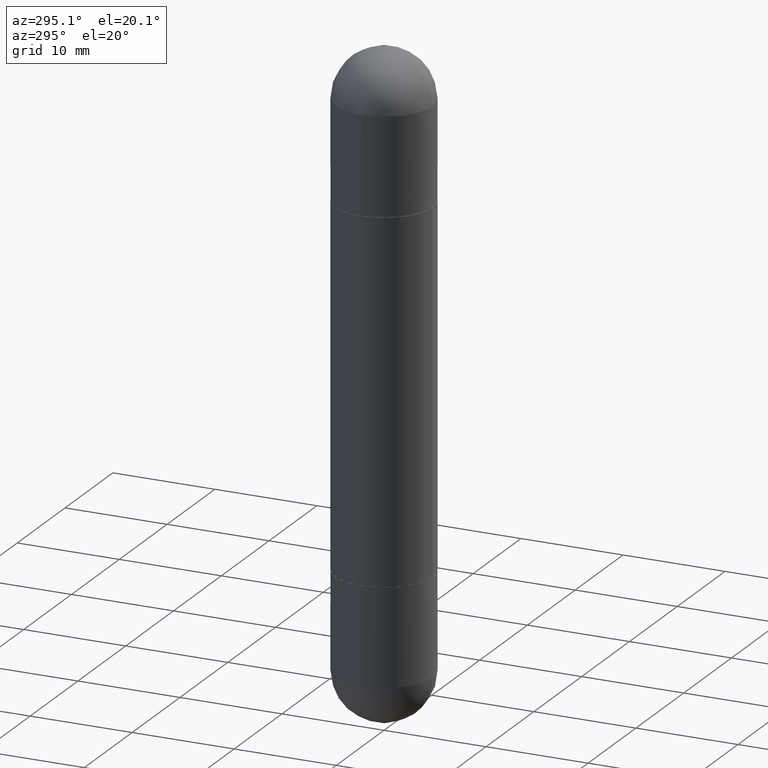
[diagram: clean part render]
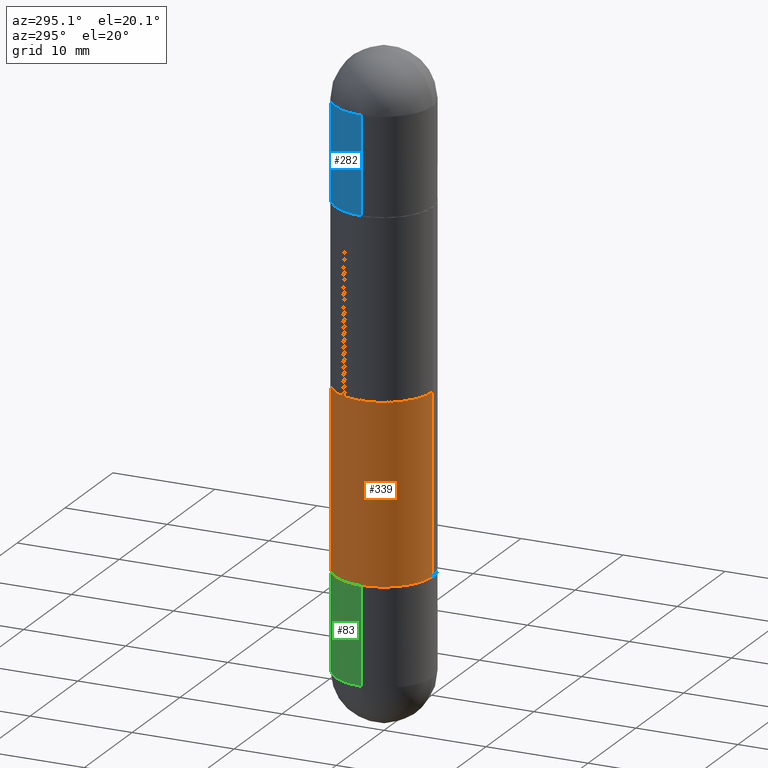
[diagram: same view with three faces highlighted in distinct colors, each labeled with its STEP entity id]
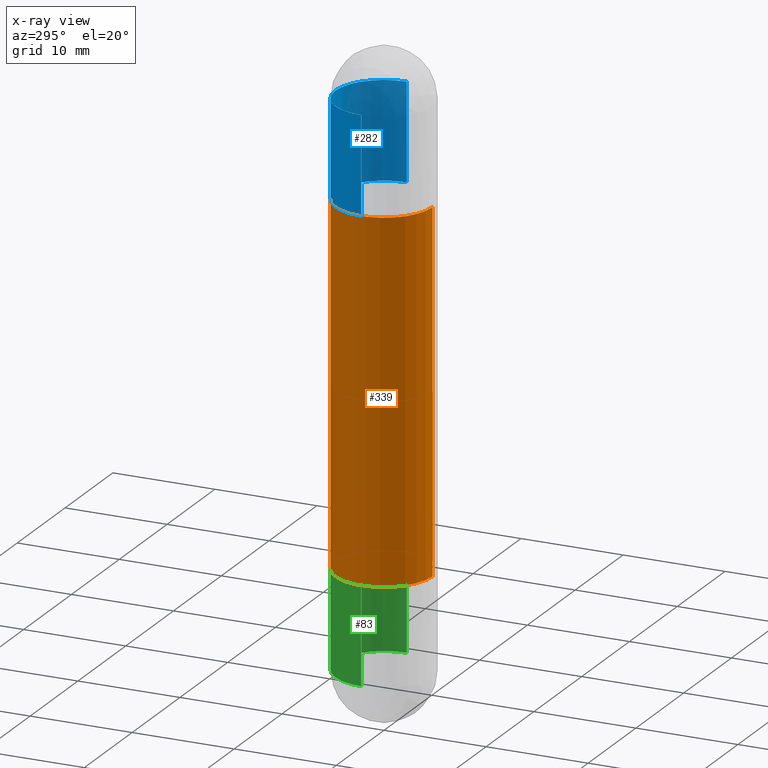
[diagram: x-ray of the same camera — body ghosted, the three highlighted faces saturated]
A machine part, auxiliary view with three faces highlighted in distinct colors.
The next image is the same camera in x-ray (body ghosted, the three faces saturated) — at least one of them is partly hidden behind the body in this view.
Their STEP definitions:

[orange] entity #339 — the highlighted cylindrical surface (partial cylindrical patch) has radius 4.7625 mm, axis along (-0, 0, -1).
#68 = DIRECTION ( 'NONE',  ( -2.446135509155562374E-29, 3.490526582243119048E-15, -1.000000000000000000 ) ) ;
#99 = CARTESIAN_POINT ( 'NONE',  ( -1.309305502066128860E-15, -0.1875000000000069389, -0.5630000000000014992 ) ) ;
#105 = DIRECTION ( 'NONE',  ( -2.446135509155562374E-29, 3.490526582243119048E-15, 1.000000000000000000 ) ) ;
#149 = AXIS2_PLACEMENT_3D ( 'NONE', #180, #105, #678 ) ;
#163 = ORIENTED_EDGE ( 'NONE', *, *, #790, .T. ) ;
#164 = CIRCLE ( 'NONE', #149, 0.1875000000000002220 ) ;
#180 = CARTESIAN_POINT ( 'NONE',  ( 4.738164481234324369E-29, -6.761149989804920839E-15, -1.936999999999999833 ) ) ;
#188 = VERTEX_POINT ( 'NONE', #488 ) ;
#190 = DIRECTION ( 'NONE',  ( -2.446135509155562374E-29, 3.490526582243119048E-15, -1.000000000000000000 ) ) ;
#209 = CARTESIAN_POINT ( 'NONE',  ( 4.738164481234324369E-29, -6.761149989804920839E-15, -0.5630000000000008331 ) ) ;
#213 = EDGE_LOOP ( 'NONE', ( #650, #480, #163, #547 ) ) ;
#251 = CARTESIAN_POINT ( 'NONE',  ( 0.000000000000000000, 0.000000000000000000, -2.500000000000000444 ) ) ;
#256 = CYLINDRICAL_SURFACE ( 'NONE', #617, 0.1875000000000001110 ) ;
#312 = CARTESIAN_POINT ( 'NONE',  ( 1.286343374582210880E-15, 0.1874999999999935052, -0.5630000000000001670 ) ) ;
#326 = FACE_OUTER_BOUND ( 'NONE', #213, .T. ) ;
#339 = ADVANCED_FACE ( 'NONE', ( #326 ), #256, .T. ) ;
#356 = DIRECTION ( 'NONE',  ( -6.982962677686265922E-15, -1.000000000000000000, -3.642463991552347014E-15 ) ) ;
#382 = VECTOR ( 'NONE', #190, 39.37007874015748143 ) ;
#428 = CARTESIAN_POINT ( 'NONE',  ( 1.286343374582193722E-15, 0.1874999999999934497, -1.937000000000000499 ) ) ;
#446 = AXIS2_PLACEMENT_3D ( 'NONE', #209, #734, #356 ) ;
#478 = VERTEX_POINT ( 'NONE', #428 ) ;
#480 = ORIENTED_EDGE ( 'NONE', *, *, #542, .T. ) ;
#488 = CARTESIAN_POINT ( 'NONE',  ( -1.309305502066129254E-15, -0.1875000000000069944, -1.936999999999999389 ) ) ;
#528 = LINE ( 'NONE', #772, #709 ) ;
#542 = EDGE_CURVE ( 'NONE', #704, #478, #555, .T. ) ;
#547 = ORIENTED_EDGE ( 'NONE', *, *, #680, .F. ) ;
#555 = LINE ( 'NONE', #741, #382 ) ;
#568 = DIRECTION ( 'NONE',  ( -2.446135509155562374E-29, 3.490526582243119048E-15, -1.000000000000000000 ) ) ;
#577 = VERTEX_POINT ( 'NONE', #99 ) ;
#617 = AXIS2_PLACEMENT_3D ( 'NONE', #251, #568, #689 ) ;
#650 = ORIENTED_EDGE ( 'NONE', *, *, #695, .F. ) ;
#678 = DIRECTION ( 'NONE',  ( -6.982962677686265922E-15, -1.000000000000000000, 2.913971193241877216E-15 ) ) ;
#680 = EDGE_CURVE ( 'NONE', #577, #188, #528, .T. ) ;
#689 = DIRECTION ( 'NONE',  ( -6.982962677686266711E-15, -1.000000000000000000, -2.913971193241879189E-15 ) ) ;
#695 = EDGE_CURVE ( 'NONE', #704, #577, #719, .T. ) ;
#704 = VERTEX_POINT ( 'NONE', #312 ) ;
#709 = VECTOR ( 'NONE', #68, 39.37007874015748143 ) ;
#719 = CIRCLE ( 'NONE', #446, 0.1875000000000002220 ) ;
#734 = DIRECTION ( 'NONE',  ( 2.446135509155562374E-29, -3.490526582243119048E-15, 1.000000000000000000 ) ) ;
#741 = CARTESIAN_POINT ( 'NONE',  ( 1.286343374582162760E-15, 0.1875000000000001110, -2.500000000000000000 ) ) ;
#772 = CARTESIAN_POINT ( 'NONE',  ( -1.309305502066175797E-15, -0.1875000000000001110, -2.500000000000001332 ) ) ;
#790 = EDGE_CURVE ( 'NONE', #478, #188, #164, .T. ) ;

[blue] entity #282 — the highlighted cylindrical surface (partial cylindrical patch) has radius 4.7625 mm, axis along (-0, 0, -1).
#12 = AXIS2_PLACEMENT_3D ( 'NONE', #300, #484, #733 ) ;
#14 = AXIS2_PLACEMENT_3D ( 'NONE', #88, #352, #634 ) ;
#23 = VERTEX_POINT ( 'NONE', #263 ) ;
#35 = CARTESIAN_POINT ( 'NONE',  ( 0.1875000000000000278, -8.075796336744191053E-15, -0.5620000000000007212 ) ) ;
#38 = CYLINDRICAL_SURFACE ( 'NONE', #12, 0.1875000000000000555 ) ;
#47 = ORIENTED_EDGE ( 'NONE', *, *, #610, .T. ) ;
#52 = DIRECTION ( 'NONE',  ( -2.445468806185136877E-29, 3.491481338843145188E-15, -1.000000000000000000 ) ) ;
#88 = CARTESIAN_POINT ( 'NONE',  ( 5.655146614303128380E-29, -8.074050596074775072E-15, -0.1875000000000006661 ) ) ;
#95 = ORIENTED_EDGE ( 'NONE', *, *, #581, .F. ) ;
#100 = CARTESIAN_POINT ( 'NONE',  ( -0.1875000000000000278, -6.133927340794232602E-15, -0.5620000000000007212 ) ) ;
#114 = LINE ( 'NONE', #736, #162 ) ;
#117 = AXIS2_PLACEMENT_3D ( 'NONE', #133, #468, #638 ) ;
#133 = CARTESIAN_POINT ( 'NONE',  ( 4.739318546386794397E-29, -6.766490834678016045E-15, -0.5620000000000007212 ) ) ;
#140 = EDGE_LOOP ( 'NONE', ( #722, #95, #710, #592, #47 ) ) ;
#162 = VECTOR ( 'NONE', #52, 39.37007874015748143 ) ;
#173 = VERTEX_POINT ( 'NONE', #100 ) ;
#194 = EDGE_CURVE ( 'NONE', #298, #173, #114, .T. ) ;
#199 = CARTESIAN_POINT ( 'NONE',  ( 0.1875000000000000555, -1.309305502066175205E-15, -2.500000000000000444 ) ) ;
#235 = VERTEX_POINT ( 'NONE', #523 ) ;
#242 = DIRECTION ( 'NONE',  ( -2.445468806185136877E-29, 3.491481338843145188E-15, -1.000000000000000000 ) ) ;
#245 = LINE ( 'NONE', #199, #481 ) ;
#263 = CARTESIAN_POINT ( 'NONE',  ( 1.309305502066231017E-15, 0.1874999999999918954, -0.1875000000000000278 ) ) ;
#282 = ADVANCED_FACE ( 'NONE', ( #491 ), #38, .T. ) ;
#298 = VERTEX_POINT ( 'NONE', #612 ) ;
#300 = CARTESIAN_POINT ( 'NONE',  ( 0.000000000000000000, 0.000000000000000000, -2.500000000000000444 ) ) ;
#352 = DIRECTION ( 'NONE',  ( 2.445468806185136597E-29, -3.491481338843145583E-15, 1.000000000000000000 ) ) ;
#368 = DIRECTION ( 'NONE',  ( 1.000000000000000000, -6.982962677686270655E-15, 0.000000000000000000 ) ) ;
#434 = CARTESIAN_POINT ( 'NONE',  ( 5.655146614303128380E-29, -8.074050596074775072E-15, -0.1875000000000006661 ) ) ;
#468 = DIRECTION ( 'NONE',  ( 2.445468806185136597E-29, -3.491481338843145583E-15, 1.000000000000000000 ) ) ;
#481 = VECTOR ( 'NONE', #242, 39.37007874015748143 ) ;
#482 = CIRCLE ( 'NONE', #117, 0.1875000000000000278 ) ;
#484 = DIRECTION ( 'NONE',  ( -2.445468806185136597E-29, 3.491481338843145583E-15, -1.000000000000000000 ) ) ;
#487 = EDGE_CURVE ( 'NONE', #235, #711, #245, .T. ) ;
#491 = FACE_OUTER_BOUND ( 'NONE', #140, .T. ) ;
#518 = EDGE_CURVE ( 'NONE', #235, #23, #578, .T. ) ;
#521 = AXIS2_PLACEMENT_3D ( 'NONE', #434, #677, #368 ) ;
#523 = CARTESIAN_POINT ( 'NONE',  ( 0.1875000000000000555, -8.729576217442571356E-15, -0.1875000000000006661 ) ) ;
#578 = CIRCLE ( 'NONE', #521, 0.1875000000000000555 ) ;
#581 = EDGE_CURVE ( 'NONE', #23, #298, #697, .T. ) ;
#592 = ORIENTED_EDGE ( 'NONE', *, *, #487, .T. ) ;
#610 = EDGE_CURVE ( 'NONE', #711, #173, #482, .T. ) ;
#612 = CARTESIAN_POINT ( 'NONE',  ( -0.1875000000000000555, -6.133927340794233391E-15, -0.1875000000000006661 ) ) ;
#634 = DIRECTION ( 'NONE',  ( 1.000000000000000000, -6.982962677686270655E-15, 0.000000000000000000 ) ) ;
#638 = DIRECTION ( 'NONE',  ( 1.000000000000000000, -6.982962677686266711E-15, 0.000000000000000000 ) ) ;
#677 = DIRECTION ( 'NONE',  ( 2.445468806185136597E-29, -3.491481338843145583E-15, 1.000000000000000000 ) ) ;
#697 = CIRCLE ( 'NONE', #14, 0.1875000000000000555 ) ;
#710 = ORIENTED_EDGE ( 'NONE', *, *, #518, .F. ) ;
#711 = VERTEX_POINT ( 'NONE', #35 ) ;
#722 = ORIENTED_EDGE ( 'NONE', *, *, #194, .F. ) ;
#733 = DIRECTION ( 'NONE',  ( 1.000000000000000000, -6.982962677686265922E-15, 0.000000000000000000 ) ) ;
#736 = CARTESIAN_POINT ( 'NONE',  ( -0.1875000000000000555, 1.286343374582162562E-15, -2.500000000000000444 ) ) ;

[green] entity #83 — the highlighted cylindrical surface (partial cylindrical patch) has radius 4.7625 mm, axis along (-0, 0, 1).
#8 = ORIENTED_EDGE ( 'NONE', *, *, #31, .T. ) ;
#9 = CARTESIAN_POINT ( 'NONE',  ( -0.1875000000000000555, -6.088003085826207710E-15, -2.312500000000000000 ) ) ;
#24 = ORIENTED_EDGE ( 'NONE', *, *, #325, .F. ) ;
#31 = EDGE_CURVE ( 'NONE', #270, #344, #214, .T. ) ;
#57 = CARTESIAN_POINT ( 'NONE',  ( 0.1875000000000000555, -1.309305502066175205E-15, 9.142831454617382414E-30 ) ) ;
#70 = CARTESIAN_POINT ( 'NONE',  ( -0.1875000000000000555, 1.332267629550188243E-15, -9.223003294227950793E-30 ) ) ;
#78 = CYLINDRICAL_SURFACE ( 'NONE', #668, 0.1875000000000000555 ) ;
#80 = DIRECTION ( 'NONE',  ( -2.445468806185136877E-29, 3.491481338843145188E-15, 1.000000000000000000 ) ) ;
#83 = ADVANCED_FACE ( 'NONE', ( #507 ), #78, .T. ) ;
#93 = ORIENTED_EDGE ( 'NONE', *, *, #136, .T. ) ;
#122 = CARTESIAN_POINT ( 'NONE',  ( -0.1875000000000000278, -6.088003085826206921E-15, -1.937999999999999945 ) ) ;
#126 = LINE ( 'NONE', #57, #192 ) ;
#135 = VERTEX_POINT ( 'NONE', #659 ) ;
#136 = EDGE_CURVE ( 'NONE', #318, #135, #177, .T. ) ;
#177 = CIRCLE ( 'NONE', #548, 0.1875000000000000555 ) ;
#178 = CIRCLE ( 'NONE', #497, 0.1875000000000000555 ) ;
#192 = VECTOR ( 'NONE', #320, 39.37007874015748143 ) ;
#210 = CARTESIAN_POINT ( 'NONE',  ( 0.000000000000000000, 0.000000000000000000, 0.000000000000000000 ) ) ;
#214 = LINE ( 'NONE', #70, #533 ) ;
#225 = CIRCLE ( 'NONE', #459, 0.1875000000000000278 ) ;
#229 = DIRECTION ( 'NONE',  ( -2.445468806185136597E-29, 3.491481338843145583E-15, 1.000000000000000000 ) ) ;
#240 = ORIENTED_EDGE ( 'NONE', *, *, #519, .T. ) ;
#270 = VERTEX_POINT ( 'NONE', #9 ) ;
#278 = DIRECTION ( 'NONE',  ( 1.000000000000000000, -6.982962677686265922E-15, 4.876176775795935793E-29 ) ) ;
#299 = DIRECTION ( 'NONE',  ( 1.000000000000000000, -6.982962677686266711E-15, 0.000000000000000000 ) ) ;
#317 = CARTESIAN_POINT ( 'NONE',  ( 5.655146614303128380E-29, -8.074050596074775072E-15, -2.312500000000000000 ) ) ;
#318 = VERTEX_POINT ( 'NONE', #355 ) ;
#320 = DIRECTION ( 'NONE',  ( -2.445468806185136877E-29, 3.491481338843145188E-15, 1.000000000000000000 ) ) ;
#325 = EDGE_CURVE ( 'NONE', #318, #560, #126, .T. ) ;
#344 = VERTEX_POINT ( 'NONE', #122 ) ;
#354 = ORIENTED_EDGE ( 'NONE', *, *, #800, .F. ) ;
#355 = CARTESIAN_POINT ( 'NONE',  ( 0.1875000000000000555, -8.729576217442571356E-15, -2.312500000000000000 ) ) ;
#400 = EDGE_LOOP ( 'NONE', ( #240, #8, #354, #24, #93 ) ) ;
#459 = AXIS2_PLACEMENT_3D ( 'NONE', #539, #674, #299 ) ;
#497 = AXIS2_PLACEMENT_3D ( 'NONE', #317, #626, #563 ) ;
#507 = FACE_OUTER_BOUND ( 'NONE', #400, .T. ) ;
#519 = EDGE_CURVE ( 'NONE', #135, #270, #178, .T. ) ;
#533 = VECTOR ( 'NONE', #80, 39.37007874015748143 ) ;
#539 = CARTESIAN_POINT ( 'NONE',  ( 4.739318546386794397E-29, -6.766490834678016045E-15, -1.937999999999999945 ) ) ;
#548 = AXIS2_PLACEMENT_3D ( 'NONE', #606, #229, #611 ) ;
#560 = VERTEX_POINT ( 'NONE', #720 ) ;
#563 = DIRECTION ( 'NONE',  ( 1.000000000000000000, -6.982962677686270655E-15, 0.000000000000000000 ) ) ;
#606 = CARTESIAN_POINT ( 'NONE',  ( 5.655146614303128380E-29, -8.074050596074775072E-15, -2.312500000000000000 ) ) ;
#611 = DIRECTION ( 'NONE',  ( 1.000000000000000000, -6.982962677686270655E-15, 0.000000000000000000 ) ) ;
#626 = DIRECTION ( 'NONE',  ( -2.445468806185136597E-29, 3.491481338843145583E-15, 1.000000000000000000 ) ) ;
#659 = CARTESIAN_POINT ( 'NONE',  ( 1.309305502066231017E-15, 0.1874999999999918954, -2.312500000000000444 ) ) ;
#668 = AXIS2_PLACEMENT_3D ( 'NONE', #210, #817, #278 ) ;
#674 = DIRECTION ( 'NONE',  ( -2.445468806185136597E-29, 3.491481338843145583E-15, 1.000000000000000000 ) ) ;
#720 = CARTESIAN_POINT ( 'NONE',  ( 0.1875000000000000278, -8.075796336744191053E-15, -1.937999999999999945 ) ) ;
#800 = EDGE_CURVE ( 'NONE', #560, #344, #225, .T. ) ;
#817 = DIRECTION ( 'NONE',  ( -2.445468806185136597E-29, 3.491481338843145583E-15, 1.000000000000000000 ) ) ;